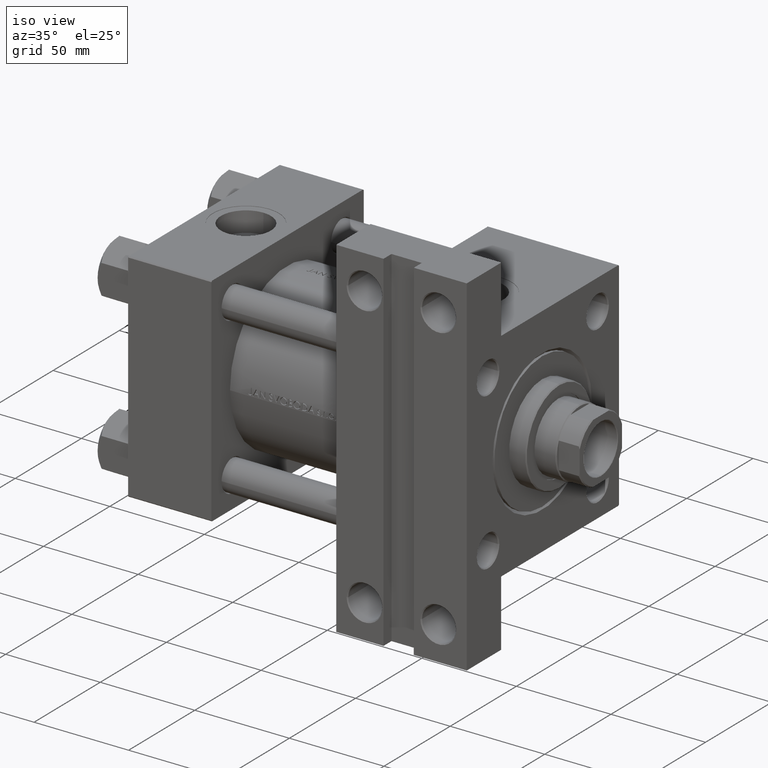
[diagram: clean part render]
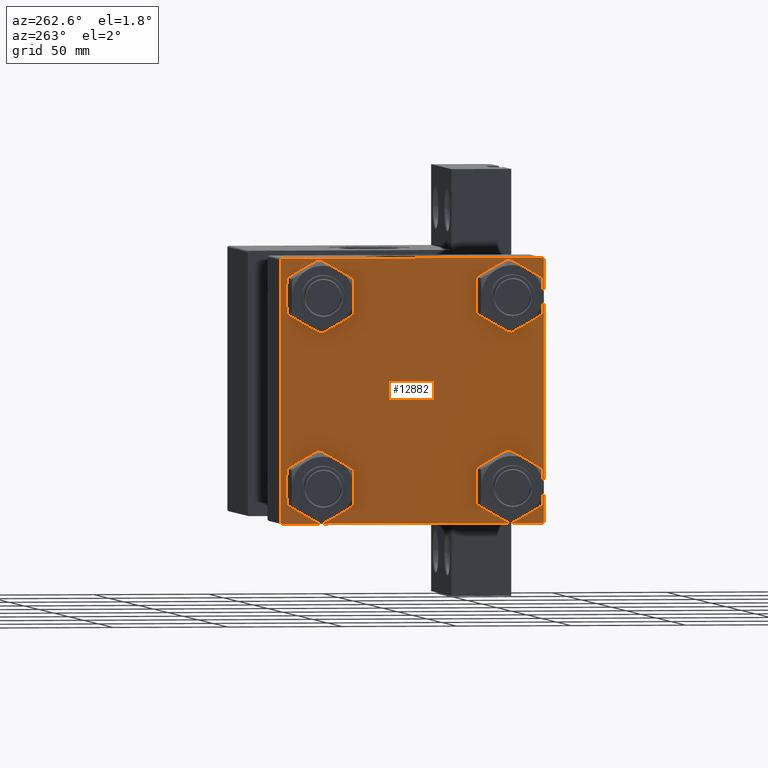
[diagram: tour spotlight — one face highlighted and labeled with its STEP entity id]
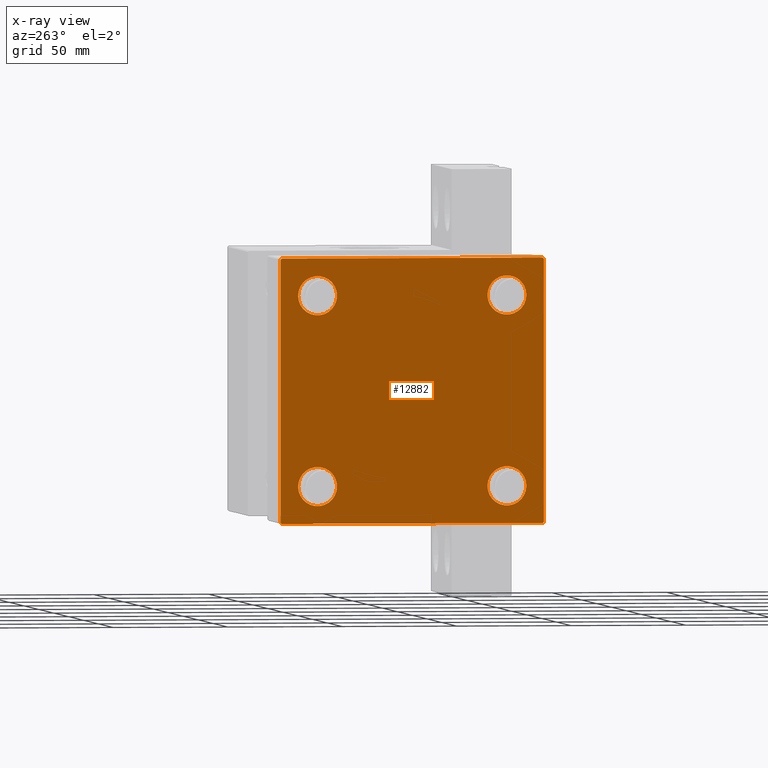
[diagram: x-ray of the same camera — body ghosted, this tour face saturated]
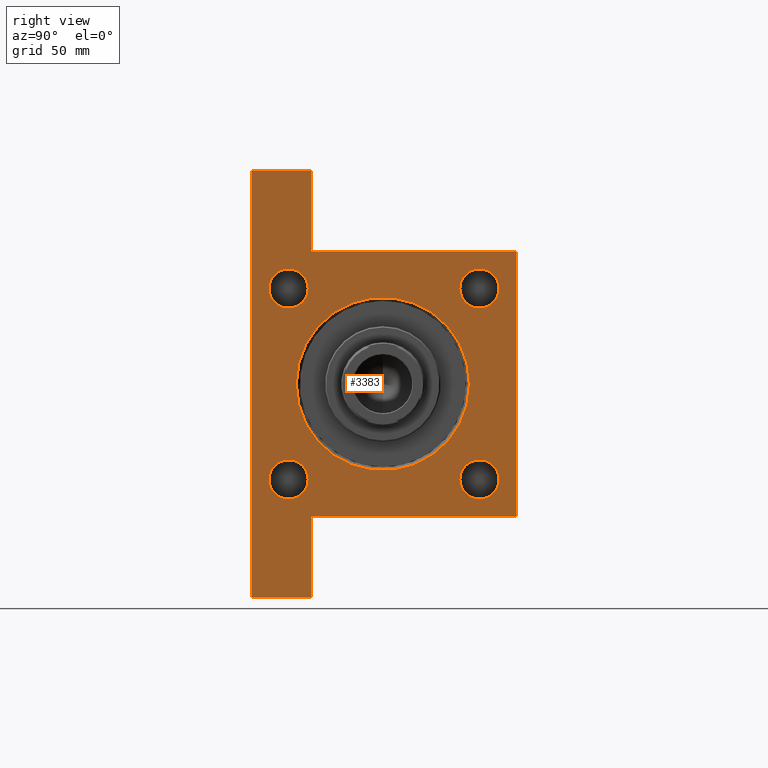
[diagram: tour spotlight — one face highlighted and labeled with its STEP entity id]
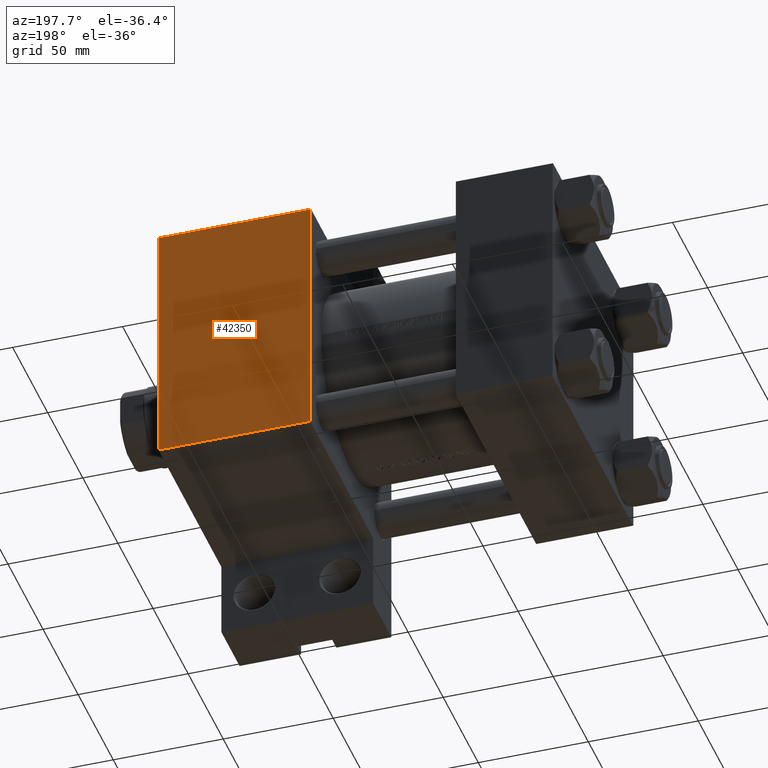
[diagram: tour spotlight — one face highlighted and labeled with its STEP entity id]
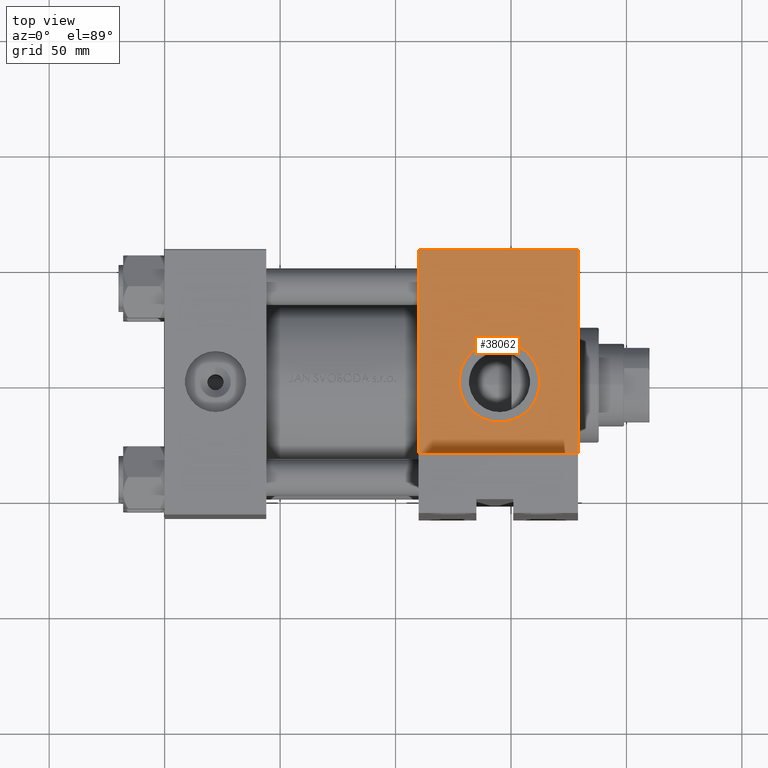
[diagram: tour spotlight — one face highlighted and labeled with its STEP entity id]
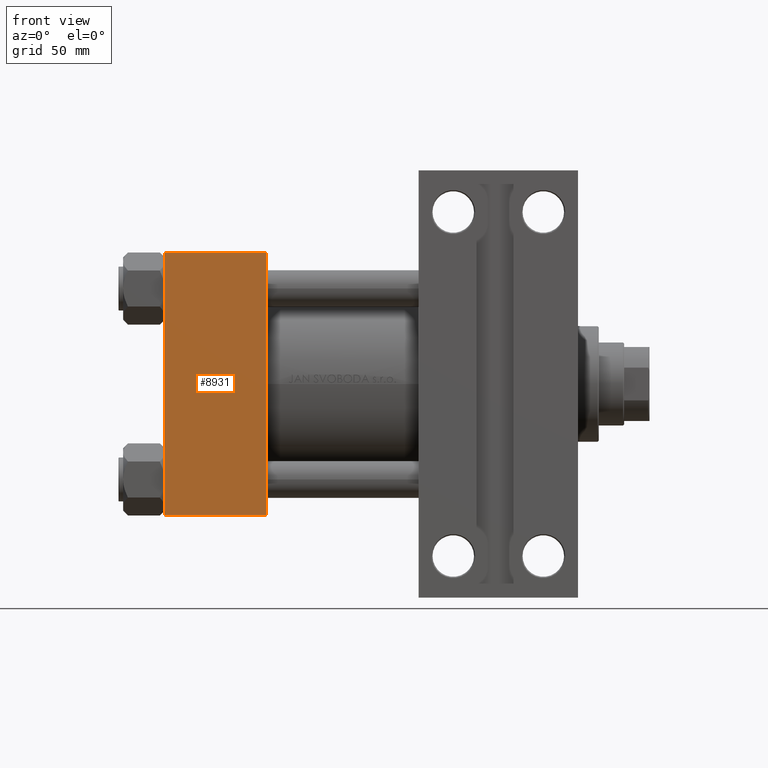
[diagram: tour spotlight — one face highlighted and labeled with its STEP entity id]
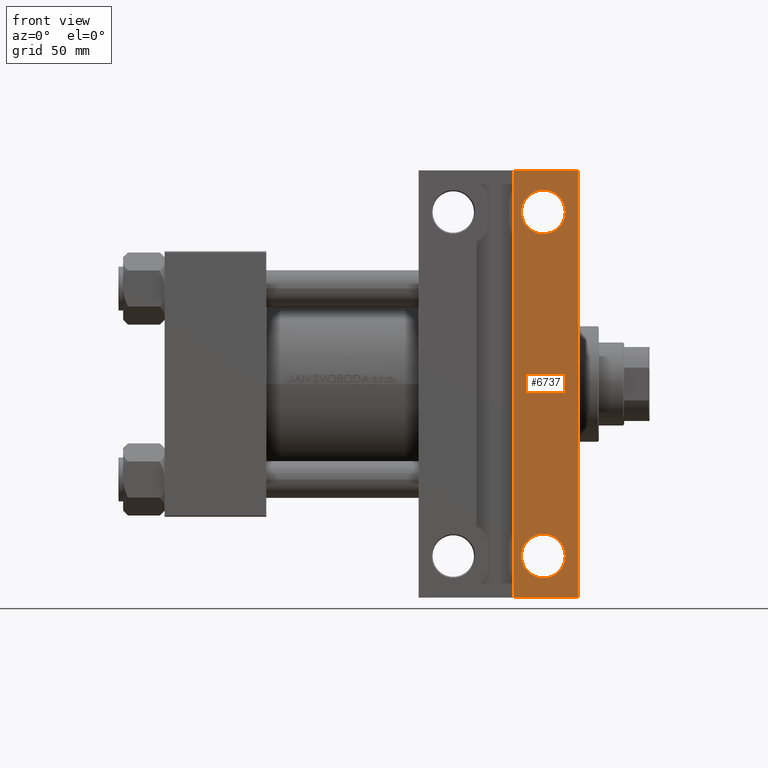
[diagram: tour spotlight — one face highlighted and labeled with its STEP entity id]
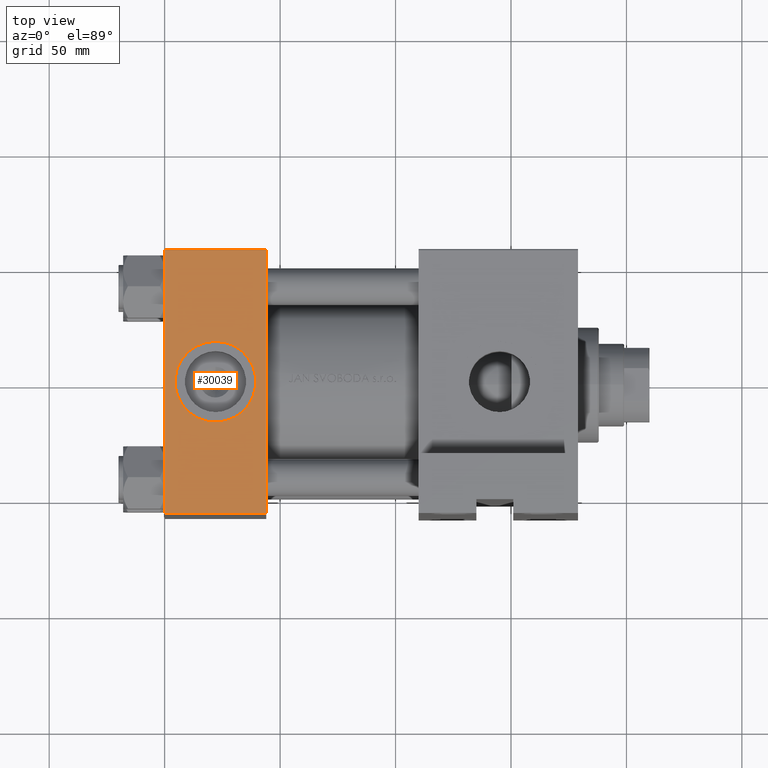
[diagram: tour spotlight — one face highlighted and labeled with its STEP entity id]
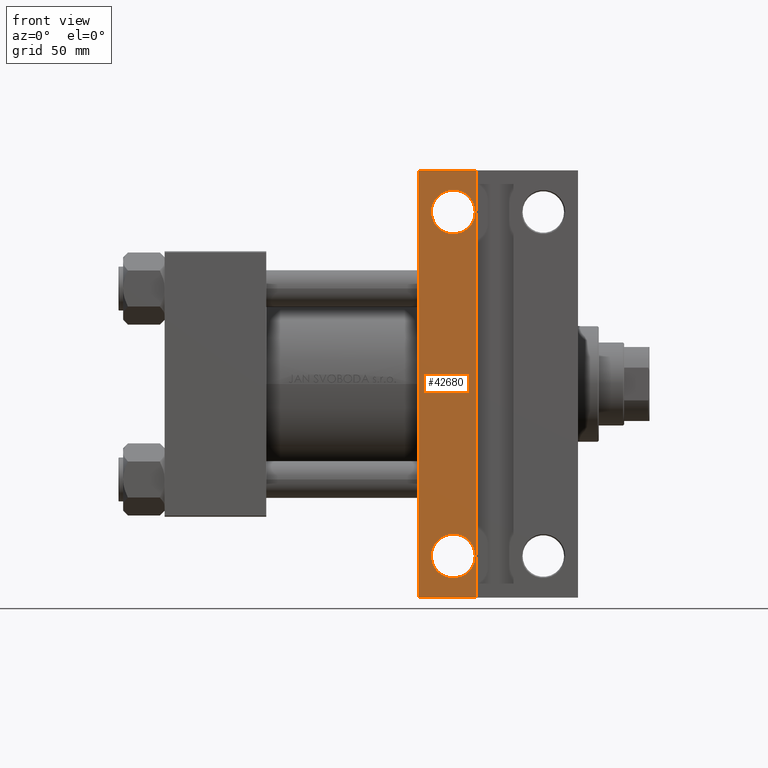
[diagram: tour spotlight — one face highlighted and labeled with its STEP entity id]
A machine part: a face-by-face anatomy tour. The part has 1151 B-rep faces; the first image is the clean iso view, then the 8 largest visible faces are spotlighted one at a time (largest first), each with its STEP entity span.

Face 1 — auxiliary view, entity #12882. An x-ray twin of the same camera follows (body ghosted, this face saturated) — the face is partly hidden behind the body. In plain terms, the highlighted planar face has unit normal (-1, 0, -0).
Definition (entity closure, byte-faithful):
#29 = DIRECTION ( 'NONE',  ( -0.000000000000000000, -0.7071067811865376918, -0.7071067811865573427 ) ) ;
#179 = LINE ( 'NONE', #22540, #7696 ) ;
#505 = DIRECTION ( 'NONE',  ( 0.000000000000000000, 0.000000000000000000, 1.000000000000000000 ) ) ;
#695 = EDGE_CURVE ( 'NONE', #29012, #22927, #42140, .T. ) ;
#711 = ORIENTED_EDGE ( 'NONE', *, *, #29229, .T. ) ;
#904 = FACE_BOUND ( 'NONE', #23667, .T. ) ;
#1090 = CARTESIAN_POINT ( 'NONE',  ( 0.000000000000000000, 41.34999999999999432, 32.85000000000000853 ) ) ;
#1196 = CARTESIAN_POINT ( 'NONE',  ( 0.000000000000000000, -57.00000000000000711, -57.50000000000000711 ) ) ;
#1483 = AXIS2_PLACEMENT_3D ( 'NONE', #33834, #7347, #505 ) ;
#1520 = EDGE_CURVE ( 'NONE', #36647, #13099, #27359, .T. ) ;
#1610 = ORIENTED_EDGE ( 'NONE', *, *, #3996, .T. ) ;
#2169 = CIRCLE ( 'NONE', #11592, 8.499999999999992895 ) ;
#2283 = AXIS2_PLACEMENT_3D ( 'NONE', #38113, #27390, #15746 ) ;
#2630 = AXIS2_PLACEMENT_3D ( 'NONE', #30036, #15696, #11566 ) ;
#2704 = CARTESIAN_POINT ( 'NONE',  ( 0.000000000000000000, -57.50000000000000711, 57.00000000000000711 ) ) ;
#2757 = EDGE_CURVE ( 'NONE', #9072, #33891, #27928, .T. ) ;
#3996 = EDGE_CURVE ( 'NONE', #37522, #20058, #47695, .T. ) ;
#4620 = CARTESIAN_POINT ( 'NONE',  ( 0.000000000000000000, 41.34999999999999432, -32.85000000000000853 ) ) ;
#6272 = DIRECTION ( 'NONE',  ( 0.000000000000000000, 0.000000000000000000, 1.000000000000000000 ) ) ;
#6276 = CARTESIAN_POINT ( 'NONE',  ( 0.000000000000000000, -41.34999999999998721, 41.35000000000000853 ) ) ;
#6684 = VECTOR ( 'NONE', #8875, 1000.000000000000114 ) ;
#7245 = DIRECTION ( 'NONE',  ( 1.000000000000000000, -0.000000000000000000, 0.000000000000000000 ) ) ;
#7347 = DIRECTION ( 'NONE',  ( 1.000000000000000000, -0.000000000000000000, 0.000000000000000000 ) ) ;
#7696 = VECTOR ( 'NONE', #18895, 1000.000000000000000 ) ;
#7769 = VECTOR ( 'NONE', #32452, 1000.000000000000114 ) ;
#7908 = VECTOR ( 'NONE', #36507, 1000.000000000000000 ) ;
#7971 = FACE_BOUND ( 'NONE', #16611, .T. ) ;
#8081 = ORIENTED_EDGE ( 'NONE', *, *, #18179, .F. ) ;
#8875 = DIRECTION ( 'NONE',  ( -0.000000000000000000, 0.7071067811865376918, 0.7071067811865573427 ) ) ;
#9072 = VERTEX_POINT ( 'NONE', #2704 ) ;
#9148 = EDGE_CURVE ( 'NONE', #11414, #11078, #33355, .T. ) ;
#9984 = EDGE_LOOP ( 'NONE', ( #41559, #711 ) ) ;
#10082 = CARTESIAN_POINT ( 'NONE',  ( 0.000000000000000000, -57.25000000000000711, -57.25000000000000711 ) ) ;
#10575 = ORIENTED_EDGE ( 'NONE', *, *, #2757, .F. ) ;
#11078 = VERTEX_POINT ( 'NONE', #29839 ) ;
#11414 = VERTEX_POINT ( 'NONE', #37736 ) ;
#11503 = DIRECTION ( 'NONE',  ( 1.000000000000000000, -0.000000000000000000, 0.000000000000000000 ) ) ;
#11566 = DIRECTION ( 'NONE',  ( 0.000000000000000000, 0.000000000000000000, 1.000000000000000000 ) ) ;
#11592 = AXIS2_PLACEMENT_3D ( 'NONE', #6276, #20853, #35210 ) ;
#12369 = DIRECTION ( 'NONE',  ( 0.000000000000000000, 0.000000000000000000, -1.000000000000000000 ) ) ;
#12588 = PLANE ( 'NONE',  #2283 ) ;
#12596 = VERTEX_POINT ( 'NONE', #1196 ) ;
#12640 = DIRECTION ( 'NONE',  ( 0.000000000000000000, 0.000000000000000000, -1.000000000000000000 ) ) ;
#12882 = ADVANCED_FACE ( 'NONE', ( #41292, #904, #7971, #30578, #33990 ), #12588, .T. ) ;
#13099 = VERTEX_POINT ( 'NONE', #19089 ) ;
#13399 = VERTEX_POINT ( 'NONE', #47325 ) ;
#13967 = VERTEX_POINT ( 'NONE', #22078 ) ;
#14162 = CARTESIAN_POINT ( 'NONE',  ( 0.000000000000000000, 57.25000000000081712, -57.24999999999922551 ) ) ;
#15039 = CARTESIAN_POINT ( 'NONE',  ( 0.000000000000000000, -41.34999999999998721, 49.85000000000000853 ) ) ;
#15580 = ORIENTED_EDGE ( 'NONE', *, *, #37918, .T. ) ;
#15696 = DIRECTION ( 'NONE',  ( 1.000000000000000000, -0.000000000000000000, 0.000000000000000000 ) ) ;
#15746 = DIRECTION ( 'NONE',  ( -0.000000000000000000, 0.000000000000000000, 1.000000000000000000 ) ) ;
#16611 = EDGE_LOOP ( 'NONE', ( #1610, #47545 ) ) ;
#17569 = CARTESIAN_POINT ( 'NONE',  ( 0.000000000000000000, 57.24999999999922551, 57.25000000000081712 ) ) ;
#18060 = AXIS2_PLACEMENT_3D ( 'NONE', #21334, #24981, #6272 ) ;
#18179 = EDGE_CURVE ( 'NONE', #30413, #13399, #44057, .T. ) ;
#18564 = CARTESIAN_POINT ( 'NONE',  ( 0.000000000000000000, 41.34999999999999432, 41.35000000000000142 ) ) ;
#18795 = DIRECTION ( 'NONE',  ( 0.000000000000000000, 0.000000000000000000, 1.000000000000000000 ) ) ;
#18895 = DIRECTION ( 'NONE',  ( 0.000000000000000000, -1.000000000000000000, -1.206764157201257045E-16 ) ) ;
#19089 = CARTESIAN_POINT ( 'NONE',  ( 0.000000000000000000, -41.34999999999998721, 32.85000000000001563 ) ) ;
#19666 = CIRCLE ( 'NONE', #34424, 8.499999999999992895 ) ;
#19975 = VERTEX_POINT ( 'NONE', #43069 ) ;
#20058 = VERTEX_POINT ( 'NONE', #38155 ) ;
#20640 = CARTESIAN_POINT ( 'NONE',  ( 0.000000000000000000, -57.50000000000000711, 57.49999999999999289 ) ) ;
#20711 = CARTESIAN_POINT ( 'NONE',  ( 0.000000000000000000, 57.00000000000000711, 57.50000000000000711 ) ) ;
#20853 = DIRECTION ( 'NONE',  ( 1.000000000000000000, -0.000000000000000000, 0.000000000000000000 ) ) ;
#21002 = CARTESIAN_POINT ( 'NONE',  ( 0.000000000000000000, 57.49999999999999289, 57.50000000000000711 ) ) ;
#21334 = CARTESIAN_POINT ( 'NONE',  ( 0.000000000000000000, -41.34999999999998721, -41.35000000000000853 ) ) ;
#22078 = CARTESIAN_POINT ( 'NONE',  ( 0.000000000000000000, 57.49999999999999289, 57.00000000000003553 ) ) ;
#22540 = CARTESIAN_POINT ( 'NONE',  ( 0.000000000000000000, 57.49999999999999289, -57.49999999999999289 ) ) ;
#22927 = VERTEX_POINT ( 'NONE', #33579 ) ;
#23021 = ORIENTED_EDGE ( 'NONE', *, *, #695, .T. ) ;
#23667 = EDGE_LOOP ( 'NONE', ( #23021, #32796 ) ) ;
#24981 = DIRECTION ( 'NONE',  ( 1.000000000000000000, -0.000000000000000000, 0.000000000000000000 ) ) ;
#25062 = EDGE_CURVE ( 'NONE', #9072, #13399, #31007, .T. ) ;
#25337 = LINE ( 'NONE', #17569, #34676 ) ;
#26511 = EDGE_CURVE ( 'NONE', #30413, #13967, #25337, .T. ) ;
#26939 = CARTESIAN_POINT ( 'NONE',  ( 0.000000000000000000, 57.49999999999999289, 57.50000000000000711 ) ) ;
#27359 = CIRCLE ( 'NONE', #30507, 8.499999999999992895 ) ;
#27390 = DIRECTION ( 'NONE',  ( -1.000000000000000000, 0.000000000000000000, -0.000000000000000000 ) ) ;
#27437 = ORIENTED_EDGE ( 'NONE', *, *, #25062, .T. ) ;
#27815 = DIRECTION ( 'NONE',  ( 1.000000000000000000, -0.000000000000000000, 0.000000000000000000 ) ) ;
#27928 = LINE ( 'NONE', #20640, #34430 ) ;
#28890 = CARTESIAN_POINT ( 'NONE',  ( 0.000000000000000000, 41.34999999999999432, -41.35000000000000142 ) ) ;
#29012 = VERTEX_POINT ( 'NONE', #33927 ) ;
#29126 = ORIENTED_EDGE ( 'NONE', *, *, #1520, .T. ) ;
#29229 = EDGE_CURVE ( 'NONE', #37796, #19975, #32433, .T. ) ;
#29839 = CARTESIAN_POINT ( 'NONE',  ( 0.000000000000000000, 57.00000000000002132, -57.49999999999999289 ) ) ;
#30036 = CARTESIAN_POINT ( 'NONE',  ( 0.000000000000000000, 41.34999999999999432, -41.35000000000000142 ) ) ;
#30413 = VERTEX_POINT ( 'NONE', #20711 ) ;
#30507 = AXIS2_PLACEMENT_3D ( 'NONE', #40561, #7245, #36902 ) ;
#30578 = FACE_BOUND ( 'NONE', #9984, .T. ) ;
#31007 = LINE ( 'NONE', #31252, #6684 ) ;
#31252 = CARTESIAN_POINT ( 'NONE',  ( -0.000000000000000000, -57.25000000000081712, 57.24999999999922551 ) ) ;
#31256 = EDGE_CURVE ( 'NONE', #22927, #29012, #36425, .T. ) ;
#31688 = ORIENTED_EDGE ( 'NONE', *, *, #35754, .T. ) ;
#32433 = CIRCLE ( 'NONE', #38632, 8.499999999999992895 ) ;
#32452 = DIRECTION ( 'NONE',  ( 0.000000000000000000, -0.7071067811865474617, 0.7071067811865474617 ) ) ;
#32795 = EDGE_CURVE ( 'NONE', #13099, #36647, #2169, .T. ) ;
#32796 = ORIENTED_EDGE ( 'NONE', *, *, #31256, .T. ) ;
#32957 = ORIENTED_EDGE ( 'NONE', *, *, #32795, .T. ) ;
#33355 = LINE ( 'NONE', #14162, #38493 ) ;
#33579 = CARTESIAN_POINT ( 'NONE',  ( 0.000000000000000000, -41.34999999999998721, -49.85000000000000853 ) ) ;
#33834 = CARTESIAN_POINT ( 'NONE',  ( 0.000000000000000000, -41.34999999999998721, -41.35000000000000853 ) ) ;
#33891 = VERTEX_POINT ( 'NONE', #42953 ) ;
#33927 = CARTESIAN_POINT ( 'NONE',  ( 0.000000000000000000, -41.34999999999998721, -32.85000000000001563 ) ) ;
#33990 = FACE_OUTER_BOUND ( 'NONE', #38801, .T. ) ;
#34424 = AXIS2_PLACEMENT_3D ( 'NONE', #46329, #27815, #42671 ) ;
#34430 = VECTOR ( 'NONE', #12640, 1000.000000000000000 ) ;
#34676 = VECTOR ( 'NONE', #47987, 1000.000000000000114 ) ;
#35210 = DIRECTION ( 'NONE',  ( 0.000000000000000000, 0.000000000000000000, 1.000000000000000000 ) ) ;
#35391 = ORIENTED_EDGE ( 'NONE', *, *, #9148, .T. ) ;
#35754 = EDGE_CURVE ( 'NONE', #11078, #12596, #179, .T. ) ;
#35766 = EDGE_CURVE ( 'NONE', #20058, #37522, #44998, .T. ) ;
#36425 = CIRCLE ( 'NONE', #1483, 8.499999999999992895 ) ;
#36435 = DIRECTION ( 'NONE',  ( 0.000000000000000000, 0.000000000000000000, 1.000000000000000000 ) ) ;
#36507 = DIRECTION ( 'NONE',  ( 0.000000000000000000, -1.000000000000000000, -1.206764157201257045E-16 ) ) ;
#36588 = ORIENTED_EDGE ( 'NONE', *, *, #39378, .T. ) ;
#36647 = VERTEX_POINT ( 'NONE', #15039 ) ;
#36902 = DIRECTION ( 'NONE',  ( 0.000000000000000000, 0.000000000000000000, 1.000000000000000000 ) ) ;
#37522 = VERTEX_POINT ( 'NONE', #4620 ) ;
#37736 = CARTESIAN_POINT ( 'NONE',  ( 0.000000000000000000, 57.49999999999999289, -57.00000000000000711 ) ) ;
#37796 = VERTEX_POINT ( 'NONE', #1090 ) ;
#37918 = EDGE_CURVE ( 'NONE', #12596, #33891, #39028, .T. ) ;
#38113 = CARTESIAN_POINT ( 'NONE',  ( 0.000000000000000000, 0.000000000000000000, 0.000000000000000000 ) ) ;
#38155 = CARTESIAN_POINT ( 'NONE',  ( 0.000000000000000000, 41.34999999999999432, -49.85000000000000142 ) ) ;
#38493 = VECTOR ( 'NONE', #29, 1000.000000000000114 ) ;
#38632 = AXIS2_PLACEMENT_3D ( 'NONE', #18564, #11503, #18795 ) ;
#38801 = EDGE_LOOP ( 'NONE', ( #36588, #35391, #31688, #15580, #10575, #27437, #8081, #43176 ) ) ;
#39028 = LINE ( 'NONE', #10082, #7769 ) ;
#39378 = EDGE_CURVE ( 'NONE', #13967, #11414, #44746, .T. ) ;
#40096 = DIRECTION ( 'NONE',  ( 1.000000000000000000, -0.000000000000000000, 0.000000000000000000 ) ) ;
#40359 = AXIS2_PLACEMENT_3D ( 'NONE', #28890, #40096, #36435 ) ;
#40561 = CARTESIAN_POINT ( 'NONE',  ( 0.000000000000000000, -41.34999999999998721, 41.35000000000000853 ) ) ;
#41292 = FACE_BOUND ( 'NONE', #45463, .T. ) ;
#41559 = ORIENTED_EDGE ( 'NONE', *, *, #46225, .T. ) ;
#42140 = CIRCLE ( 'NONE', #18060, 8.499999999999992895 ) ;
#42671 = DIRECTION ( 'NONE',  ( 0.000000000000000000, 0.000000000000000000, 1.000000000000000000 ) ) ;
#42770 = VECTOR ( 'NONE', #12369, 1000.000000000000000 ) ;
#42953 = CARTESIAN_POINT ( 'NONE',  ( 0.000000000000000000, -57.50000000000000711, -57.00000000000000711 ) ) ;
#43069 = CARTESIAN_POINT ( 'NONE',  ( 0.000000000000000000, 41.34999999999999432, 49.85000000000000142 ) ) ;
#43176 = ORIENTED_EDGE ( 'NONE', *, *, #26511, .T. ) ;
#44057 = LINE ( 'NONE', #21002, #7908 ) ;
#44746 = LINE ( 'NONE', #26939, #42770 ) ;
#44998 = CIRCLE ( 'NONE', #40359, 8.499999999999992895 ) ;
#45463 = EDGE_LOOP ( 'NONE', ( #29126, #32957 ) ) ;
#46225 = EDGE_CURVE ( 'NONE', #19975, #37796, #19666, .T. ) ;
#46329 = CARTESIAN_POINT ( 'NONE',  ( 0.000000000000000000, 41.34999999999999432, 41.35000000000000142 ) ) ;
#47325 = CARTESIAN_POINT ( 'NONE',  ( 0.000000000000000000, -57.00000000000003553, 57.49999999999999289 ) ) ;
#47545 = ORIENTED_EDGE ( 'NONE', *, *, #35766, .T. ) ;
#47695 = CIRCLE ( 'NONE', #2630, 8.499999999999992895 ) ;
#47987 = DIRECTION ( 'NONE',  ( 0.000000000000000000, 0.7071067811865573427, -0.7071067811865376918 ) ) ;

Face 2 — right view, entity #3383. In plain terms, the highlighted planar face has unit normal (-1, 0, -0).
Definition (entity closure, byte-faithful):
#60 = CARTESIAN_POINT ( 'NONE',  ( 179.0000000000000000, 41.34999999999999432, 32.84999999999994458 ) ) ;
#102 = CARTESIAN_POINT ( 'NONE',  ( 179.0000000000000000, 41.34999999999999432, -32.84999999999994458 ) ) ;
#301 = DIRECTION ( 'NONE',  ( 0.000000000000000000, 0.000000000000000000, 1.000000000000000000 ) ) ;
#892 = LINE ( 'NONE', #15736, #28988 ) ;
#1118 = LINE ( 'NONE', #4299, #1759 ) ;
#1381 = CIRCLE ( 'NONE', #28560, 8.500000000000063949 ) ;
#1759 = VECTOR ( 'NONE', #7948, 1000.000000000000000 ) ;
#2134 = LINE ( 'NONE', #2622, #46529 ) ;
#2154 = ORIENTED_EDGE ( 'NONE', *, *, #42298, .T. ) ;
#2362 = VERTEX_POINT ( 'NONE', #12989 ) ;
#2622 = CARTESIAN_POINT ( 'NONE',  ( 179.0000000000000000, -57.49999999999999289, 56.99999999999996447 ) ) ;
#2833 = VERTEX_POINT ( 'NONE', #21367 ) ;
#3004 = FACE_BOUND ( 'NONE', #41665, .T. ) ;
#3240 = LINE ( 'NONE', #28528, #4682 ) ;
#3383 = ADVANCED_FACE ( 'NONE', ( #46563, #13247, #29031, #3004, #18093, #13723 ), #17603, .F. ) ;
#3420 = CARTESIAN_POINT ( 'NONE',  ( 179.0000000000000000, 0.000000000000000000, -0.4999999999999657496 ) ) ;
#3446 = VERTEX_POINT ( 'NONE', #41409 ) ;
#3448 = ORIENTED_EDGE ( 'NONE', *, *, #14490, .F. ) ;
#3570 = AXIS2_PLACEMENT_3D ( 'NONE', #42992, #16478, #31316 ) ;
#3794 = EDGE_CURVE ( 'NONE', #27403, #33658, #35419, .T. ) ;
#4096 = CARTESIAN_POINT ( 'NONE',  ( 179.0000000000000000, 4.592425496802575156E-15, 37.00000000000004263 ) ) ;
#4124 = AXIS2_PLACEMENT_3D ( 'NONE', #40466, #36089, #6427 ) ;
#4248 = DIRECTION ( 'NONE',  ( -1.000000000000000000, 0.000000000000000000, -0.000000000000000000 ) ) ;
#4299 = CARTESIAN_POINT ( 'NONE',  ( 179.0000000000000284, 92.49999999999997158, -31.49999999999997158 ) ) ;
#4682 = VECTOR ( 'NONE', #47042, 1000.000000000000000 ) ;
#5104 = CIRCLE ( 'NONE', #47063, 8.500000000000063949 ) ;
#5567 = LINE ( 'NONE', #42300, #38944 ) ;
#5569 = CARTESIAN_POINT ( 'NONE',  ( 179.0000000000000000, -57.49999999999999289, 57.49999999999999289 ) ) ;
#5698 = DIRECTION ( 'NONE',  ( 0.000000000000000000, 0.000000000000000000, 1.000000000000000000 ) ) ;
#5734 = CARTESIAN_POINT ( 'NONE',  ( 179.0000000000000000, 41.34999999999999432, 49.85000000000006537 ) ) ;
#6263 = EDGE_CURVE ( 'NONE', #16394, #46175, #44660, .T. ) ;
#6349 = DIRECTION ( 'NONE',  ( -1.000000000000000000, 0.000000000000000000, -0.000000000000000000 ) ) ;
#6427 = DIRECTION ( 'NONE',  ( -0.000000000000000000, 0.000000000000000000, 1.000000000000000000 ) ) ;
#6869 = VERTEX_POINT ( 'NONE', #31322 ) ;
#6991 = CIRCLE ( 'NONE', #34904, 37.50000000000000711 ) ;
#7868 = CIRCLE ( 'NONE', #26491, 8.500000000000063949 ) ;
#7948 = DIRECTION ( 'NONE',  ( 0.000000000000000000, -1.000000000000000000, 0.000000000000000000 ) ) ;
#8547 = ORIENTED_EDGE ( 'NONE', *, *, #41626, .F. ) ;
#8836 = ORIENTED_EDGE ( 'NONE', *, *, #45026, .T. ) ;
#9292 = DIRECTION ( 'NONE',  ( -1.000000000000000000, 0.000000000000000000, -0.000000000000000000 ) ) ;
#9350 = LINE ( 'NONE', #39027, #13470 ) ;
#9507 = VERTEX_POINT ( 'NONE', #31843 ) ;
#9540 = CARTESIAN_POINT ( 'NONE',  ( 179.0000000000000000, 41.34999999999999432, 41.35000000000000142 ) ) ;
#9645 = ORIENTED_EDGE ( 'NONE', *, *, #18255, .T. ) ;
#9671 = VERTEX_POINT ( 'NONE', #37164 ) ;
#10109 = EDGE_CURVE ( 'NONE', #13312, #11343, #38694, .T. ) ;
#10255 = ORIENTED_EDGE ( 'NONE', *, *, #6263, .T. ) ;
#10323 = DIRECTION ( 'NONE',  ( -1.000000000000000000, 0.000000000000000000, -0.000000000000000000 ) ) ;
#10453 = ORIENTED_EDGE ( 'NONE', *, *, #46238, .F. ) ;
#10538 = CIRCLE ( 'NONE', #26815, 8.500000000000063949 ) ;
#10858 = EDGE_CURVE ( 'NONE', #3446, #45104, #2134, .T. ) ;
#11257 = CARTESIAN_POINT ( 'NONE',  ( 179.0000000000000000, -41.34999999999999432, 41.35000000000000142 ) ) ;
#11300 = CARTESIAN_POINT ( 'NONE',  ( 179.0000000000000000, -57.49999999999999289, -31.49999999999997158 ) ) ;
#11343 = VERTEX_POINT ( 'NONE', #60 ) ;
#11550 = CARTESIAN_POINT ( 'NONE',  ( 179.0000000000000000, 0.000000000000000000, -0.4999999999999657496 ) ) ;
#12001 = ORIENTED_EDGE ( 'NONE', *, *, #24025, .T. ) ;
#12283 = VERTEX_POINT ( 'NONE', #33688 ) ;
#12716 = VECTOR ( 'NONE', #28125, 1000.000000000000000 ) ;
#12989 = CARTESIAN_POINT ( 'NONE',  ( 179.0000000000000284, 92.49999999999997158, -31.49999999999997158 ) ) ;
#13199 = CARTESIAN_POINT ( 'NONE',  ( 179.0000000000000000, 41.34999999999999432, -41.35000000000000142 ) ) ;
#13247 = FACE_BOUND ( 'NONE', #38810, .T. ) ;
#13312 = VERTEX_POINT ( 'NONE', #5734 ) ;
#13396 = VECTOR ( 'NONE', #26984, 1000.000000000000000 ) ;
#13470 = VECTOR ( 'NONE', #31715, 1000.000000000000000 ) ;
#13723 = FACE_OUTER_BOUND ( 'NONE', #20961, .T. ) ;
#14490 = EDGE_CURVE ( 'NONE', #2362, #40788, #3240, .T. ) ;
#15135 = ORIENTED_EDGE ( 'NONE', *, *, #10109, .T. ) ;
#15736 = CARTESIAN_POINT ( 'NONE',  ( 179.0000000000000000, -92.50000000000000000, -31.49999999999997158 ) ) ;
#16301 = LINE ( 'NONE', #34304, #13396 ) ;
#16339 = DIRECTION ( 'NONE',  ( 0.000000000000000000, 0.000000000000000000, 1.000000000000000000 ) ) ;
#16394 = VERTEX_POINT ( 'NONE', #47460 ) ;
#16478 = DIRECTION ( 'NONE',  ( -1.000000000000000000, 0.000000000000000000, -0.000000000000000000 ) ) ;
#17103 = EDGE_LOOP ( 'NONE', ( #21674, #10255 ) ) ;
#17480 = CARTESIAN_POINT ( 'NONE',  ( 179.0000000000000000, -41.34999999999999432, 32.84999999999994458 ) ) ;
#17603 = PLANE ( 'NONE',  #4124 ) ;
#17747 = AXIS2_PLACEMENT_3D ( 'NONE', #9540, #46518, #32159 ) ;
#17773 = AXIS2_PLACEMENT_3D ( 'NONE', #3420, #6349, #21415 ) ;
#17835 = DIRECTION ( 'NONE',  ( -1.000000000000000000, 0.000000000000000000, -0.000000000000000000 ) ) ;
#18093 = FACE_BOUND ( 'NONE', #45800, .T. ) ;
#18255 = EDGE_CURVE ( 'NONE', #45104, #27403, #24054, .T. ) ;
#18868 = DIRECTION ( 'NONE',  ( 0.000000000000000000, 0.000000000000000000, 1.000000000000000000 ) ) ;
#19712 = ORIENTED_EDGE ( 'NONE', *, *, #10858, .T. ) ;
#20961 = EDGE_LOOP ( 'NONE', ( #10453, #22275, #31061, #19712, #9645, #37949, #8836, #8547, #3448, #22543 ) ) ;
#21367 = CARTESIAN_POINT ( 'NONE',  ( 179.0000000000000000, -41.34999999999999432, 49.85000000000006537 ) ) ;
#21415 = DIRECTION ( 'NONE',  ( 0.000000000000000000, 0.000000000000000000, 1.000000000000000000 ) ) ;
#21674 = ORIENTED_EDGE ( 'NONE', *, *, #41903, .T. ) ;
#22275 = ORIENTED_EDGE ( 'NONE', *, *, #47630, .T. ) ;
#22543 = ORIENTED_EDGE ( 'NONE', *, *, #44316, .T. ) ;
#23350 = EDGE_CURVE ( 'NONE', #9507, #39070, #10538, .T. ) ;
#23831 = VERTEX_POINT ( 'NONE', #4096 ) ;
#24025 = EDGE_CURVE ( 'NONE', #11343, #13312, #5104, .T. ) ;
#24054 = LINE ( 'NONE', #5569, #41308 ) ;
#25774 = AXIS2_PLACEMENT_3D ( 'NONE', #35116, #10323, #5698 ) ;
#26364 = DIRECTION ( 'NONE',  ( 0.000000000000000000, 0.000000000000000000, 1.000000000000000000 ) ) ;
#26491 = AXIS2_PLACEMENT_3D ( 'NONE', #46384, #38355, #30576 ) ;
#26815 = AXIS2_PLACEMENT_3D ( 'NONE', #13199, #9292, #39215 ) ;
#26984 = DIRECTION ( 'NONE',  ( 0.000000000000000000, -0.7071067811865672237, 0.7071067811865279218 ) ) ;
#27403 = VERTEX_POINT ( 'NONE', #11300 ) ;
#27888 = EDGE_CURVE ( 'NONE', #42338, #3446, #32312, .T. ) ;
#28125 = DIRECTION ( 'NONE',  ( -0.000000000000000000, -1.000000000000000000, -0.000000000000000000 ) ) ;
#28424 = EDGE_CURVE ( 'NONE', #2833, #40951, #1381, .T. ) ;
#28528 = CARTESIAN_POINT ( 'NONE',  ( 179.0000000000000284, 92.49999999999997158, -31.49999999999997158 ) ) ;
#28560 = AXIS2_PLACEMENT_3D ( 'NONE', #11257, #17835, #301 ) ;
#28988 = VECTOR ( 'NONE', #33515, 1000.000000000000000 ) ;
#29031 = FACE_BOUND ( 'NONE', #17103, .T. ) ;
#29038 = CARTESIAN_POINT ( 'NONE',  ( 179.0000000000000000, 57.50000000000000000, 57.00000000000009237 ) ) ;
#30576 = DIRECTION ( 'NONE',  ( 0.000000000000000000, 0.000000000000000000, 1.000000000000000000 ) ) ;
#30870 = DIRECTION ( 'NONE',  ( 0.000000000000000000, -1.000000000000000000, -1.206764157201257291E-16 ) ) ;
#31061 = ORIENTED_EDGE ( 'NONE', *, *, #27888, .T. ) ;
#31316 = DIRECTION ( 'NONE',  ( 0.000000000000000000, 0.000000000000000000, 1.000000000000000000 ) ) ;
#31322 = CARTESIAN_POINT ( 'NONE',  ( 179.0000000000000000, -92.50000000000000000, -57.49999999999997158 ) ) ;
#31715 = DIRECTION ( 'NONE',  ( 0.000000000000000000, 0.000000000000000000, -1.000000000000000000 ) ) ;
#31843 = CARTESIAN_POINT ( 'NONE',  ( 179.0000000000000000, 41.34999999999999432, -49.85000000000006537 ) ) ;
#32159 = DIRECTION ( 'NONE',  ( 0.000000000000000000, 0.000000000000000000, 1.000000000000000000 ) ) ;
#32312 = LINE ( 'NONE', #46918, #32401 ) ;
#32401 = VECTOR ( 'NONE', #36440, 1000.000000000000000 ) ;
#33515 = DIRECTION ( 'NONE',  ( 0.000000000000000000, 0.000000000000000000, -1.000000000000000000 ) ) ;
#33658 = VERTEX_POINT ( 'NONE', #37967 ) ;
#33688 = CARTESIAN_POINT ( 'NONE',  ( 179.0000000000000284, 57.49999999999998579, -31.49999999999997158 ) ) ;
#33946 = ORIENTED_EDGE ( 'NONE', *, *, #34491, .T. ) ;
#34149 = CIRCLE ( 'NONE', #41924, 8.500000000000063949 ) ;
#34216 = CARTESIAN_POINT ( 'NONE',  ( 179.0000000000000000, -57.49999999999999289, 56.99999999999996447 ) ) ;
#34304 = CARTESIAN_POINT ( 'NONE',  ( 179.0000000000000000, 57.00000000000005684, 57.50000000000000711 ) ) ;
#34491 = EDGE_CURVE ( 'NONE', #23831, #9671, #44215, .T. ) ;
#34904 = AXIS2_PLACEMENT_3D ( 'NONE', #11550, #4248, #26364 ) ;
#35116 = CARTESIAN_POINT ( 'NONE',  ( 179.0000000000000000, 41.34999999999999432, -41.35000000000000142 ) ) ;
#35291 = CARTESIAN_POINT ( 'NONE',  ( 179.0000000000000000, -41.34999999999999432, 41.35000000000000142 ) ) ;
#35419 = LINE ( 'NONE', #46628, #12716 ) ;
#35478 = DIRECTION ( 'NONE',  ( 0.000000000000000000, 0.000000000000000000, -1.000000000000000000 ) ) ;
#35565 = ORIENTED_EDGE ( 'NONE', *, *, #37191, .T. ) ;
#35879 = CARTESIAN_POINT ( 'NONE',  ( 179.0000000000000284, 92.49999999999997158, -57.49999999999997158 ) ) ;
#36089 = DIRECTION ( 'NONE',  ( -1.000000000000000000, 0.000000000000000000, -0.000000000000000000 ) ) ;
#36440 = DIRECTION ( 'NONE',  ( 0.000000000000000000, -1.000000000000000000, -1.206764157201257291E-16 ) ) ;
#36854 = EDGE_CURVE ( 'NONE', #9671, #23831, #6991, .T. ) ;
#37164 = CARTESIAN_POINT ( 'NONE',  ( 179.0000000000000000, 0.000000000000000000, -37.99999999999997158 ) ) ;
#37191 = EDGE_CURVE ( 'NONE', #40951, #2833, #34149, .T. ) ;
#37815 = CARTESIAN_POINT ( 'NONE',  ( 179.0000000000000000, -41.34999999999999432, -49.85000000000006537 ) ) ;
#37826 = DIRECTION ( 'NONE',  ( -1.000000000000000000, 0.000000000000000000, -0.000000000000000000 ) ) ;
#37949 = ORIENTED_EDGE ( 'NONE', *, *, #3794, .T. ) ;
#37967 = CARTESIAN_POINT ( 'NONE',  ( 179.0000000000000000, -92.50000000000000000, -31.49999999999997158 ) ) ;
#38355 = DIRECTION ( 'NONE',  ( -1.000000000000000000, 0.000000000000000000, -0.000000000000000000 ) ) ;
#38694 = CIRCLE ( 'NONE', #17747, 8.500000000000063949 ) ;
#38810 = EDGE_LOOP ( 'NONE', ( #35565, #41691 ) ) ;
#38944 = VECTOR ( 'NONE', #30870, 1000.000000000000000 ) ;
#39027 = CARTESIAN_POINT ( 'NONE',  ( 179.0000000000000000, 57.50000000000000000, 57.50000000000000711 ) ) ;
#39070 = VERTEX_POINT ( 'NONE', #102 ) ;
#39124 = DIRECTION ( 'NONE',  ( -0.000000000000000000, -0.7071067811865524577, -0.7071067811865426878 ) ) ;
#39215 = DIRECTION ( 'NONE',  ( 0.000000000000000000, 0.000000000000000000, 1.000000000000000000 ) ) ;
#39436 = DIRECTION ( 'NONE',  ( -1.000000000000000000, 0.000000000000000000, -0.000000000000000000 ) ) ;
#40466 = CARTESIAN_POINT ( 'NONE',  ( 179.0000000000000000, 0.000000000000000000, 0.000000000000000000 ) ) ;
#40788 = VERTEX_POINT ( 'NONE', #35879 ) ;
#40951 = VERTEX_POINT ( 'NONE', #17480 ) ;
#41138 = ORIENTED_EDGE ( 'NONE', *, *, #23350, .T. ) ;
#41308 = VECTOR ( 'NONE', #35478, 1000.000000000000000 ) ;
#41409 = CARTESIAN_POINT ( 'NONE',  ( 179.0000000000000000, -56.99999999999995737, 57.49999999999999289 ) ) ;
#41626 = EDGE_CURVE ( 'NONE', #40788, #6869, #5567, .T. ) ;
#41665 = EDGE_LOOP ( 'NONE', ( #41138, #2154 ) ) ;
#41691 = ORIENTED_EDGE ( 'NONE', *, *, #28424, .T. ) ;
#41903 = EDGE_CURVE ( 'NONE', #46175, #16394, #7868, .T. ) ;
#41924 = AXIS2_PLACEMENT_3D ( 'NONE', #35291, #39436, #16339 ) ;
#42298 = EDGE_CURVE ( 'NONE', #39070, #9507, #43675, .T. ) ;
#42300 = CARTESIAN_POINT ( 'NONE',  ( 179.0000000000000000, 57.50000000000000000, -57.49999999999996447 ) ) ;
#42338 = VERTEX_POINT ( 'NONE', #46326 ) ;
#42992 = CARTESIAN_POINT ( 'NONE',  ( 179.0000000000000000, -41.34999999999999432, -41.35000000000000142 ) ) ;
#43671 = ORIENTED_EDGE ( 'NONE', *, *, #36854, .T. ) ;
#43675 = CIRCLE ( 'NONE', #25774, 8.500000000000063949 ) ;
#44215 = CIRCLE ( 'NONE', #17773, 37.50000000000000711 ) ;
#44316 = EDGE_CURVE ( 'NONE', #2362, #12283, #1118, .T. ) ;
#44660 = CIRCLE ( 'NONE', #3570, 8.500000000000063949 ) ;
#44904 = CARTESIAN_POINT ( 'NONE',  ( 179.0000000000000000, 41.34999999999999432, 41.35000000000000142 ) ) ;
#45026 = EDGE_CURVE ( 'NONE', #33658, #6869, #892, .T. ) ;
#45104 = VERTEX_POINT ( 'NONE', #34216 ) ;
#45298 = EDGE_LOOP ( 'NONE', ( #12001, #15135 ) ) ;
#45800 = EDGE_LOOP ( 'NONE', ( #43671, #33946 ) ) ;
#46175 = VERTEX_POINT ( 'NONE', #37815 ) ;
#46238 = EDGE_CURVE ( 'NONE', #46313, #12283, #9350, .T. ) ;
#46313 = VERTEX_POINT ( 'NONE', #29038 ) ;
#46326 = CARTESIAN_POINT ( 'NONE',  ( 179.0000000000000000, 57.00000000000005684, 57.50000000000000711 ) ) ;
#46384 = CARTESIAN_POINT ( 'NONE',  ( 179.0000000000000000, -41.34999999999999432, -41.35000000000000142 ) ) ;
#46518 = DIRECTION ( 'NONE',  ( -1.000000000000000000, 0.000000000000000000, -0.000000000000000000 ) ) ;
#46529 = VECTOR ( 'NONE', #39124, 1000.000000000000000 ) ;
#46563 = FACE_BOUND ( 'NONE', #45298, .T. ) ;
#46628 = CARTESIAN_POINT ( 'NONE',  ( 179.0000000000000000, -92.50000000000000000, -31.49999999999997158 ) ) ;
#46918 = CARTESIAN_POINT ( 'NONE',  ( 179.0000000000000000, 57.50000000000000000, 57.50000000000000711 ) ) ;
#47042 = DIRECTION ( 'NONE',  ( 0.000000000000000000, 0.000000000000000000, -1.000000000000000000 ) ) ;
#47063 = AXIS2_PLACEMENT_3D ( 'NONE', #44904, #37826, #18868 ) ;
#47460 = CARTESIAN_POINT ( 'NONE',  ( 179.0000000000000000, -41.34999999999999432, -32.84999999999994458 ) ) ;
#47630 = EDGE_CURVE ( 'NONE', #46313, #42338, #16301, .T. ) ;

Face 3 — auxiliary view, entity #42350. In plain terms, the highlighted planar face has unit normal (0, -1, -0).
Definition (entity closure, byte-faithful):
#3150 = EDGE_CURVE ( 'NONE', #13978, #10663, #6724, .T. ) ;
#3446 = VERTEX_POINT ( 'NONE', #41409 ) ;
#3604 = DIRECTION ( 'NONE',  ( 1.000000000000000000, 0.000000000000000000, 0.000000000000000000 ) ) ;
#6724 = LINE ( 'NONE', #17659, #38318 ) ;
#6788 = CARTESIAN_POINT ( 'NONE',  ( 179.0000000000000000, -56.99999999999995737, 57.49999999999999289 ) ) ;
#8625 = CARTESIAN_POINT ( 'NONE',  ( 110.0000000000000000, 57.00000000000005684, 57.50000000000000711 ) ) ;
#8868 = LINE ( 'NONE', #8625, #20181 ) ;
#10663 = VERTEX_POINT ( 'NONE', #14605 ) ;
#13250 = DIRECTION ( 'NONE',  ( 0.000000000000000000, 1.206764157201257291E-16, -1.000000000000000000 ) ) ;
#13444 = ORIENTED_EDGE ( 'NONE', *, *, #27888, .F. ) ;
#13978 = VERTEX_POINT ( 'NONE', #29850 ) ;
#14605 = CARTESIAN_POINT ( 'NONE',  ( 110.0000000000000000, -56.99999999999995737, 57.49999999999999289 ) ) ;
#15574 = ORIENTED_EDGE ( 'NONE', *, *, #37837, .T. ) ;
#17532 = EDGE_CURVE ( 'NONE', #10663, #3446, #25254, .T. ) ;
#17659 = CARTESIAN_POINT ( 'NONE',  ( 110.0000000000000000, 57.50000000000000000, 57.50000000000000711 ) ) ;
#20181 = VECTOR ( 'NONE', #34650, 1000.000000000000000 ) ;
#24706 = DIRECTION ( 'NONE',  ( 0.000000000000000000, -1.000000000000000000, -1.206764157201257291E-16 ) ) ;
#25254 = LINE ( 'NONE', #6788, #43649 ) ;
#26823 = EDGE_LOOP ( 'NONE', ( #13444, #15574, #39311, #34107 ) ) ;
#27888 = EDGE_CURVE ( 'NONE', #42338, #3446, #32312, .T. ) ;
#28054 = DIRECTION ( 'NONE',  ( 0.000000000000000000, 1.000000000000000000, 1.206764157201257291E-16 ) ) ;
#29850 = CARTESIAN_POINT ( 'NONE',  ( 110.0000000000000000, 57.00000000000005684, 57.50000000000000711 ) ) ;
#32312 = LINE ( 'NONE', #46918, #32401 ) ;
#32401 = VECTOR ( 'NONE', #36440, 1000.000000000000000 ) ;
#32789 = AXIS2_PLACEMENT_3D ( 'NONE', #46567, #13250, #28054 ) ;
#34107 = ORIENTED_EDGE ( 'NONE', *, *, #17532, .T. ) ;
#34650 = DIRECTION ( 'NONE',  ( -1.000000000000000000, 0.000000000000000000, 0.000000000000000000 ) ) ;
#36440 = DIRECTION ( 'NONE',  ( 0.000000000000000000, -1.000000000000000000, -1.206764157201257291E-16 ) ) ;
#37837 = EDGE_CURVE ( 'NONE', #42338, #13978, #8868, .T. ) ;
#38318 = VECTOR ( 'NONE', #24706, 1000.000000000000000 ) ;
#39311 = ORIENTED_EDGE ( 'NONE', *, *, #3150, .T. ) ;
#41409 = CARTESIAN_POINT ( 'NONE',  ( 179.0000000000000000, -56.99999999999995737, 57.49999999999999289 ) ) ;
#42338 = VERTEX_POINT ( 'NONE', #46326 ) ;
#42350 = ADVANCED_FACE ( 'NONE', ( #42667 ), #46804, .F. ) ;
#42667 = FACE_OUTER_BOUND ( 'NONE', #26823, .T. ) ;
#43649 = VECTOR ( 'NONE', #3604, 1000.000000000000000 ) ;
#46326 = CARTESIAN_POINT ( 'NONE',  ( 179.0000000000000000, 57.00000000000005684, 57.50000000000000711 ) ) ;
#46567 = CARTESIAN_POINT ( 'NONE',  ( 179.0000000000000000, 57.50000000000000000, 57.50000000000000711 ) ) ;
#46804 = PLANE ( 'NONE',  #32789 ) ;
#46918 = CARTESIAN_POINT ( 'NONE',  ( 179.0000000000000000, 57.50000000000000000, 57.50000000000000711 ) ) ;

Face 4 — top view, entity #38062. In plain terms, the highlighted planar face has unit normal (0, 0, -1).
Definition (entity closure, byte-faithful):
#189 = DIRECTION ( 'NONE',  ( 0.000000000000000000, 0.000000000000000000, -1.000000000000000000 ) ) ;
#1477 = VECTOR ( 'NONE', #25121, 1000.000000000000000 ) ;
#3331 = VECTOR ( 'NONE', #18557, 1000.000000000000000 ) ;
#4391 = DIRECTION ( 'NONE',  ( -1.000000000000000000, 0.000000000000000000, 0.000000000000000000 ) ) ;
#5474 = ORIENTED_EDGE ( 'NONE', *, *, #25927, .F. ) ;
#5569 = CARTESIAN_POINT ( 'NONE',  ( 179.0000000000000000, -57.49999999999999289, 57.49999999999999289 ) ) ;
#5877 = EDGE_CURVE ( 'NONE', #45104, #47696, #37706, .T. ) ;
#8313 = LINE ( 'NONE', #37984, #3331 ) ;
#8498 = CIRCLE ( 'NONE', #45802, 17.50000000000002132 ) ;
#8570 = CARTESIAN_POINT ( 'NONE',  ( 179.0000000000000000, -57.49999999999999289, 57.49999999999999289 ) ) ;
#8904 = VECTOR ( 'NONE', #4391, 1000.000000000000000 ) ;
#9110 = VERTEX_POINT ( 'NONE', #13192 ) ;
#9836 = AXIS2_PLACEMENT_3D ( 'NONE', #16183, #34186, #26388 ) ;
#11300 = CARTESIAN_POINT ( 'NONE',  ( 179.0000000000000000, -57.49999999999999289, -31.49999999999997158 ) ) ;
#11927 = EDGE_CURVE ( 'NONE', #9110, #17947, #8498, .T. ) ;
#13192 = CARTESIAN_POINT ( 'NONE',  ( 145.0000000000000284, -57.49999999999999289, -17.50000000000002132 ) ) ;
#13245 = CARTESIAN_POINT ( 'NONE',  ( 145.0000000000000284, -57.49999999999999289, 17.50000000000002132 ) ) ;
#16061 = CARTESIAN_POINT ( 'NONE',  ( 110.0000000000000000, -57.49999999999999289, 56.99999999999996447 ) ) ;
#16183 = CARTESIAN_POINT ( 'NONE',  ( 145.0000000000000284, -57.49999999999999289, 0.000000000000000000 ) ) ;
#16309 = AXIS2_PLACEMENT_3D ( 'NONE', #8570, #22680, #22926 ) ;
#17947 = VERTEX_POINT ( 'NONE', #13245 ) ;
#18255 = EDGE_CURVE ( 'NONE', #45104, #27403, #24054, .T. ) ;
#18557 = DIRECTION ( 'NONE',  ( 0.000000000000000000, 0.000000000000000000, -1.000000000000000000 ) ) ;
#19047 = EDGE_LOOP ( 'NONE', ( #22529, #5474 ) ) ;
#19233 = VERTEX_POINT ( 'NONE', #33791 ) ;
#19271 = FACE_BOUND ( 'NONE', #19047, .T. ) ;
#21714 = CARTESIAN_POINT ( 'NONE',  ( 110.0000000000000000, -57.49999999999999289, -31.49999999999997158 ) ) ;
#21950 = LINE ( 'NONE', #21714, #1477 ) ;
#22529 = ORIENTED_EDGE ( 'NONE', *, *, #11927, .F. ) ;
#22680 = DIRECTION ( 'NONE',  ( -0.000000000000000000, 1.000000000000000000, 0.000000000000000000 ) ) ;
#22926 = DIRECTION ( 'NONE',  ( 0.000000000000000000, -0.000000000000000000, 1.000000000000000000 ) ) ;
#24054 = LINE ( 'NONE', #5569, #41308 ) ;
#25121 = DIRECTION ( 'NONE',  ( 1.000000000000000000, -1.005636797667714409E-16, 0.000000000000000000 ) ) ;
#25927 = EDGE_CURVE ( 'NONE', #17947, #9110, #35436, .T. ) ;
#26388 = DIRECTION ( 'NONE',  ( 0.000000000000000000, 0.000000000000000000, -1.000000000000000000 ) ) ;
#26797 = PLANE ( 'NONE',  #16309 ) ;
#27403 = VERTEX_POINT ( 'NONE', #11300 ) ;
#30219 = FACE_OUTER_BOUND ( 'NONE', #42299, .T. ) ;
#30775 = ORIENTED_EDGE ( 'NONE', *, *, #18255, .F. ) ;
#32453 = ORIENTED_EDGE ( 'NONE', *, *, #5877, .T. ) ;
#33791 = CARTESIAN_POINT ( 'NONE',  ( 110.0000000000000000, -57.49999999999999289, -31.49999999999997158 ) ) ;
#34186 = DIRECTION ( 'NONE',  ( 0.000000000000000000, -1.000000000000000000, -8.673617379884036705E-17 ) ) ;
#34216 = CARTESIAN_POINT ( 'NONE',  ( 179.0000000000000000, -57.49999999999999289, 56.99999999999996447 ) ) ;
#35436 = CIRCLE ( 'NONE', #9836, 17.50000000000002132 ) ;
#35478 = DIRECTION ( 'NONE',  ( 0.000000000000000000, 0.000000000000000000, -1.000000000000000000 ) ) ;
#36207 = DIRECTION ( 'NONE',  ( 0.000000000000000000, -1.000000000000000000, -8.673617379884036705E-17 ) ) ;
#36236 = EDGE_CURVE ( 'NONE', #19233, #27403, #21950, .T. ) ;
#36683 = CARTESIAN_POINT ( 'NONE',  ( 145.0000000000000284, -57.49999999999999289, 0.000000000000000000 ) ) ;
#37706 = LINE ( 'NONE', #38187, #8904 ) ;
#37984 = CARTESIAN_POINT ( 'NONE',  ( 110.0000000000000000, -57.49999999999999289, 57.49999999999999289 ) ) ;
#38062 = ADVANCED_FACE ( 'NONE', ( #19271, #30219 ), #26797, .F. ) ;
#38187 = CARTESIAN_POINT ( 'NONE',  ( 179.0000000000000000, -57.49999999999999289, 56.99999999999996447 ) ) ;
#41151 = ORIENTED_EDGE ( 'NONE', *, *, #36236, .T. ) ;
#41308 = VECTOR ( 'NONE', #35478, 1000.000000000000000 ) ;
#41916 = ORIENTED_EDGE ( 'NONE', *, *, #45572, .T. ) ;
#42299 = EDGE_LOOP ( 'NONE', ( #30775, #32453, #41916, #41151 ) ) ;
#45104 = VERTEX_POINT ( 'NONE', #34216 ) ;
#45572 = EDGE_CURVE ( 'NONE', #47696, #19233, #8313, .T. ) ;
#45802 = AXIS2_PLACEMENT_3D ( 'NONE', #36683, #36207, #189 ) ;
#47696 = VERTEX_POINT ( 'NONE', #16061 ) ;

Face 5 — front view, entity #8931. In plain terms, the highlighted planar face has unit normal (0, -1, -0).
Definition (entity closure, byte-faithful):
#179 = LINE ( 'NONE', #22540, #7696 ) ;
#935 = CARTESIAN_POINT ( 'NONE',  ( 44.00000000000000000, 57.49999999999999289, -57.49999999999999289 ) ) ;
#1196 = CARTESIAN_POINT ( 'NONE',  ( 0.000000000000000000, -57.00000000000000711, -57.50000000000000711 ) ) ;
#2500 = ORIENTED_EDGE ( 'NONE', *, *, #19171, .T. ) ;
#3522 = CARTESIAN_POINT ( 'NONE',  ( 44.00000000000000000, -57.00000000000000711, -57.50000000000000711 ) ) ;
#3826 = DIRECTION ( 'NONE',  ( -1.000000000000000000, 0.000000000000000000, 0.000000000000000000 ) ) ;
#4681 = CARTESIAN_POINT ( 'NONE',  ( 44.00000000000000000, 57.49999999999999289, -57.49999999999999289 ) ) ;
#6389 = VECTOR ( 'NONE', #41080, 1000.000000000000000 ) ;
#6481 = ORIENTED_EDGE ( 'NONE', *, *, #35707, .T. ) ;
#7696 = VECTOR ( 'NONE', #18895, 1000.000000000000000 ) ;
#8090 = PLANE ( 'NONE',  #18297 ) ;
#8931 = ADVANCED_FACE ( 'NONE', ( #22924 ), #8090, .T. ) ;
#9441 = EDGE_LOOP ( 'NONE', ( #19385, #22489, #2500, #6481 ) ) ;
#11078 = VERTEX_POINT ( 'NONE', #29839 ) ;
#11170 = VECTOR ( 'NONE', #15081, 1000.000000000000000 ) ;
#12596 = VERTEX_POINT ( 'NONE', #1196 ) ;
#13164 = VECTOR ( 'NONE', #3826, 1000.000000000000000 ) ;
#15081 = DIRECTION ( 'NONE',  ( 1.000000000000000000, 0.000000000000000000, 0.000000000000000000 ) ) ;
#16412 = CARTESIAN_POINT ( 'NONE',  ( 44.00000000000000000, 57.00000000000002132, -57.49999999999999289 ) ) ;
#18297 = AXIS2_PLACEMENT_3D ( 'NONE', #4681, #45070, #45308 ) ;
#18484 = LINE ( 'NONE', #25532, #11170 ) ;
#18895 = DIRECTION ( 'NONE',  ( 0.000000000000000000, -1.000000000000000000, -1.206764157201257045E-16 ) ) ;
#19171 = EDGE_CURVE ( 'NONE', #43303, #27391, #34262, .T. ) ;
#19385 = ORIENTED_EDGE ( 'NONE', *, *, #35754, .F. ) ;
#20044 = EDGE_CURVE ( 'NONE', #11078, #43303, #18484, .T. ) ;
#22489 = ORIENTED_EDGE ( 'NONE', *, *, #20044, .T. ) ;
#22540 = CARTESIAN_POINT ( 'NONE',  ( 0.000000000000000000, 57.49999999999999289, -57.49999999999999289 ) ) ;
#22924 = FACE_OUTER_BOUND ( 'NONE', #9441, .T. ) ;
#25532 = CARTESIAN_POINT ( 'NONE',  ( 44.00000000000000000, 57.00000000000002132, -57.49999999999999289 ) ) ;
#27391 = VERTEX_POINT ( 'NONE', #3522 ) ;
#29616 = CARTESIAN_POINT ( 'NONE',  ( 0.000000000000000000, -57.00000000000000711, -57.50000000000000711 ) ) ;
#29839 = CARTESIAN_POINT ( 'NONE',  ( 0.000000000000000000, 57.00000000000002132, -57.49999999999999289 ) ) ;
#34262 = LINE ( 'NONE', #935, #6389 ) ;
#35707 = EDGE_CURVE ( 'NONE', #27391, #12596, #44700, .T. ) ;
#35754 = EDGE_CURVE ( 'NONE', #11078, #12596, #179, .T. ) ;
#41080 = DIRECTION ( 'NONE',  ( 0.000000000000000000, -1.000000000000000000, -1.206764157201257045E-16 ) ) ;
#43303 = VERTEX_POINT ( 'NONE', #16412 ) ;
#44700 = LINE ( 'NONE', #29616, #13164 ) ;
#45070 = DIRECTION ( 'NONE',  ( 0.000000000000000000, 1.206764157201257045E-16, -1.000000000000000000 ) ) ;
#45308 = DIRECTION ( 'NONE',  ( 0.000000000000000000, 1.000000000000000000, 1.206764157201257045E-16 ) ) ;

Face 6 — front view, entity #6737. In plain terms, the highlighted planar face has unit normal (0, -1, -0).
Definition (entity closure, byte-faithful):
#1404 = AXIS2_PLACEMENT_3D ( 'NONE', #44349, #24633, #6166 ) ;
#1521 = DIRECTION ( 'NONE',  ( 0.000000000000000000, 1.206764157201257291E-16, -1.000000000000000000 ) ) ;
#2037 = EDGE_CURVE ( 'NONE', #44976, #24188, #27404, .T. ) ;
#3745 = CIRCLE ( 'NONE', #1404, 9.499499999999965638 ) ;
#4159 = EDGE_CURVE ( 'NONE', #6869, #32054, #46096, .T. ) ;
#4623 = CARTESIAN_POINT ( 'NONE',  ( 173.4994999999999550, -74.50000000000000000, -57.49999999999997868 ) ) ;
#5410 = CIRCLE ( 'NONE', #19396, 9.499499999999994060 ) ;
#5567 = LINE ( 'NONE', #42300, #38944 ) ;
#6166 = DIRECTION ( 'NONE',  ( 0.000000000000000000, 1.000000000000000000, 0.000000000000000000 ) ) ;
#6737 = ADVANCED_FACE ( 'NONE', ( #43781, #45804, #12484 ), #42141, .T. ) ;
#6869 = VERTEX_POINT ( 'NONE', #31322 ) ;
#8167 = EDGE_CURVE ( 'NONE', #30954, #32054, #12458, .T. ) ;
#10267 = CARTESIAN_POINT ( 'NONE',  ( 173.4994999999999834, 74.50000000000000000, -57.49999999999996447 ) ) ;
#11003 = EDGE_LOOP ( 'NONE', ( #47699, #19430, #37296, #17365 ) ) ;
#12458 = LINE ( 'NONE', #41165, #26015 ) ;
#12484 = FACE_BOUND ( 'NONE', #43994, .T. ) ;
#13012 = ORIENTED_EDGE ( 'NONE', *, *, #31120, .T. ) ;
#13084 = CARTESIAN_POINT ( 'NONE',  ( 151.0000000000000284, 92.50000000000000000, -57.49999999999997158 ) ) ;
#13490 = EDGE_CURVE ( 'NONE', #24188, #44976, #5410, .T. ) ;
#16208 = DIRECTION ( 'NONE',  ( -0.000000000000000000, -1.206764157201257291E-16, 1.000000000000000000 ) ) ;
#16364 = DIRECTION ( 'NONE',  ( 0.000000000000000000, 1.000000000000000000, 1.206764157201257291E-16 ) ) ;
#16366 = ORIENTED_EDGE ( 'NONE', *, *, #2037, .T. ) ;
#17365 = ORIENTED_EDGE ( 'NONE', *, *, #4159, .T. ) ;
#18429 = CARTESIAN_POINT ( 'NONE',  ( 110.0000000000000284, 92.50000000000000000, -57.49999999999997158 ) ) ;
#19215 = CARTESIAN_POINT ( 'NONE',  ( 154.5005000000000166, -74.50000000000000000, -57.49999999999997868 ) ) ;
#19327 = EDGE_LOOP ( 'NONE', ( #24508, #13012 ) ) ;
#19396 = AXIS2_PLACEMENT_3D ( 'NONE', #27250, #30913, #20199 ) ;
#19430 = ORIENTED_EDGE ( 'NONE', *, *, #20306, .T. ) ;
#20199 = DIRECTION ( 'NONE',  ( 0.000000000000000000, 1.000000000000000000, 0.000000000000000000 ) ) ;
#20306 = EDGE_CURVE ( 'NONE', #30954, #40788, #44474, .T. ) ;
#22311 = CARTESIAN_POINT ( 'NONE',  ( 154.5004999999999882, 74.50000000000000000, -57.49999999999996447 ) ) ;
#22945 = ORIENTED_EDGE ( 'NONE', *, *, #13490, .T. ) ;
#23502 = VERTEX_POINT ( 'NONE', #19215 ) ;
#23584 = VECTOR ( 'NONE', #28892, 1000.000000000000000 ) ;
#23658 = CARTESIAN_POINT ( 'NONE',  ( 179.0000000000000000, 57.50000000000000000, -57.49999999999996447 ) ) ;
#23976 = CARTESIAN_POINT ( 'NONE',  ( 163.9999999999999716, 74.50000000000000000, -57.49999999999996447 ) ) ;
#24188 = VERTEX_POINT ( 'NONE', #10267 ) ;
#24508 = ORIENTED_EDGE ( 'NONE', *, *, #34276, .T. ) ;
#24633 = DIRECTION ( 'NONE',  ( -0.000000000000000000, -1.206764157201257291E-16, 1.000000000000000000 ) ) ;
#26015 = VECTOR ( 'NONE', #26784, 1000.000000000000000 ) ;
#26784 = DIRECTION ( 'NONE',  ( -0.000000000000000000, -1.000000000000000000, -0.000000000000000000 ) ) ;
#27250 = CARTESIAN_POINT ( 'NONE',  ( 163.9999999999999716, 74.50000000000000000, -57.49999999999996447 ) ) ;
#27404 = CIRCLE ( 'NONE', #33603, 9.499499999999994060 ) ;
#28256 = CARTESIAN_POINT ( 'NONE',  ( 163.9999999999999716, -74.50000000000000000, -57.49999999999997868 ) ) ;
#28892 = DIRECTION ( 'NONE',  ( 1.000000000000000000, -4.022547190670857638E-16, 0.000000000000000000 ) ) ;
#29412 = CIRCLE ( 'NONE', #44190, 9.499499999999965638 ) ;
#29743 = VERTEX_POINT ( 'NONE', #4623 ) ;
#30870 = DIRECTION ( 'NONE',  ( 0.000000000000000000, -1.000000000000000000, -1.206764157201257291E-16 ) ) ;
#30913 = DIRECTION ( 'NONE',  ( -0.000000000000000000, -1.206764157201257291E-16, 1.000000000000000000 ) ) ;
#30954 = VERTEX_POINT ( 'NONE', #13084 ) ;
#31120 = EDGE_CURVE ( 'NONE', #29743, #23502, #29412, .T. ) ;
#31322 = CARTESIAN_POINT ( 'NONE',  ( 179.0000000000000000, -92.50000000000000000, -57.49999999999997158 ) ) ;
#32054 = VERTEX_POINT ( 'NONE', #36115 ) ;
#33603 = AXIS2_PLACEMENT_3D ( 'NONE', #23976, #16208, #38816 ) ;
#34276 = EDGE_CURVE ( 'NONE', #23502, #29743, #3745, .T. ) ;
#35315 = DIRECTION ( 'NONE',  ( -0.000000000000000000, -1.206764157201257291E-16, 1.000000000000000000 ) ) ;
#35557 = DIRECTION ( 'NONE',  ( 0.000000000000000000, 1.000000000000000000, 0.000000000000000000 ) ) ;
#35879 = CARTESIAN_POINT ( 'NONE',  ( 179.0000000000000284, 92.49999999999997158, -57.49999999999997158 ) ) ;
#36115 = CARTESIAN_POINT ( 'NONE',  ( 151.0000000000000284, -92.49999999999998579, -57.49999999999997158 ) ) ;
#37296 = ORIENTED_EDGE ( 'NONE', *, *, #41626, .T. ) ;
#38816 = DIRECTION ( 'NONE',  ( 0.000000000000000000, 1.000000000000000000, 0.000000000000000000 ) ) ;
#38944 = VECTOR ( 'NONE', #30870, 1000.000000000000000 ) ;
#39294 = AXIS2_PLACEMENT_3D ( 'NONE', #23658, #1521, #16364 ) ;
#40788 = VERTEX_POINT ( 'NONE', #35879 ) ;
#41165 = CARTESIAN_POINT ( 'NONE',  ( 151.0000000000000284, -92.49999999999998579, -57.49999999999997158 ) ) ;
#41626 = EDGE_CURVE ( 'NONE', #40788, #6869, #5567, .T. ) ;
#42141 = PLANE ( 'NONE',  #39294 ) ;
#42300 = CARTESIAN_POINT ( 'NONE',  ( 179.0000000000000000, 57.50000000000000000, -57.49999999999996447 ) ) ;
#42675 = DIRECTION ( 'NONE',  ( -1.000000000000000000, -0.000000000000000000, -0.000000000000000000 ) ) ;
#43781 = FACE_OUTER_BOUND ( 'NONE', #11003, .T. ) ;
#43994 = EDGE_LOOP ( 'NONE', ( #16366, #22945 ) ) ;
#44190 = AXIS2_PLACEMENT_3D ( 'NONE', #28256, #35315, #35557 ) ;
#44349 = CARTESIAN_POINT ( 'NONE',  ( 163.9999999999999716, -74.50000000000000000, -57.49999999999997868 ) ) ;
#44474 = LINE ( 'NONE', #18429, #23584 ) ;
#44976 = VERTEX_POINT ( 'NONE', #22311 ) ;
#45341 = VECTOR ( 'NONE', #42675, 1000.000000000000000 ) ;
#45804 = FACE_BOUND ( 'NONE', #19327, .T. ) ;
#46096 = LINE ( 'NONE', #46575, #45341 ) ;
#46575 = CARTESIAN_POINT ( 'NONE',  ( 110.0000000000000000, -92.50000000000000000, -57.49999999999997158 ) ) ;
#47699 = ORIENTED_EDGE ( 'NONE', *, *, #8167, .F. ) ;

Face 7 — top view, entity #30039. In plain terms, the highlighted planar face has unit normal (0, 0, -1).
Definition (entity closure, byte-faithful):
#1239 = AXIS2_PLACEMENT_3D ( 'NONE', #10576, #6930, #3273 ) ;
#2704 = CARTESIAN_POINT ( 'NONE',  ( 0.000000000000000000, -57.50000000000000711, 57.00000000000000711 ) ) ;
#2757 = EDGE_CURVE ( 'NONE', #9072, #33891, #27928, .T. ) ;
#2895 = FACE_OUTER_BOUND ( 'NONE', #31003, .T. ) ;
#3273 = DIRECTION ( 'NONE',  ( 0.000000000000000000, 0.000000000000000000, -1.000000000000000000 ) ) ;
#3835 = EDGE_LOOP ( 'NONE', ( #26181, #5179 ) ) ;
#5137 = CIRCLE ( 'NONE', #1239, 17.50000000000000000 ) ;
#5179 = ORIENTED_EDGE ( 'NONE', *, *, #26200, .F. ) ;
#5538 = AXIS2_PLACEMENT_3D ( 'NONE', #15976, #27139, #41986 ) ;
#6930 = DIRECTION ( 'NONE',  ( 0.000000000000000000, -1.000000000000000000, -8.673617379884036705E-17 ) ) ;
#7033 = LINE ( 'NONE', #25496, #31104 ) ;
#7042 = DIRECTION ( 'NONE',  ( -0.000000000000000000, 1.000000000000000000, 0.000000000000000000 ) ) ;
#7639 = AXIS2_PLACEMENT_3D ( 'NONE', #28918, #7042, #25970 ) ;
#9072 = VERTEX_POINT ( 'NONE', #2704 ) ;
#10576 = CARTESIAN_POINT ( 'NONE',  ( 22.00000000000000000, -57.50000000000000711, 0.000000000000000000 ) ) ;
#10708 = ORIENTED_EDGE ( 'NONE', *, *, #17259, .T. ) ;
#12640 = DIRECTION ( 'NONE',  ( 0.000000000000000000, 0.000000000000000000, -1.000000000000000000 ) ) ;
#14107 = PLANE ( 'NONE',  #7639 ) ;
#14788 = EDGE_CURVE ( 'NONE', #40271, #30950, #7033, .T. ) ;
#15976 = CARTESIAN_POINT ( 'NONE',  ( 22.00000000000000000, -57.50000000000000711, 0.000000000000000000 ) ) ;
#16963 = CARTESIAN_POINT ( 'NONE',  ( 44.00000000000000000, -57.50000000000000711, -57.00000000000000711 ) ) ;
#17259 = EDGE_CURVE ( 'NONE', #33891, #30950, #30628, .T. ) ;
#18596 = LINE ( 'NONE', #22473, #30857 ) ;
#18987 = ORIENTED_EDGE ( 'NONE', *, *, #2757, .T. ) ;
#19349 = VERTEX_POINT ( 'NONE', #25231 ) ;
#20640 = CARTESIAN_POINT ( 'NONE',  ( 0.000000000000000000, -57.50000000000000711, 57.49999999999999289 ) ) ;
#20690 = CARTESIAN_POINT ( 'NONE',  ( 22.00000000000000000, -57.50000000000000711, -17.50000000000000000 ) ) ;
#21684 = VERTEX_POINT ( 'NONE', #20690 ) ;
#22091 = DIRECTION ( 'NONE',  ( 0.000000000000000000, 0.000000000000000000, -1.000000000000000000 ) ) ;
#22473 = CARTESIAN_POINT ( 'NONE',  ( 44.00000000000000000, -57.50000000000000711, 57.00000000000000711 ) ) ;
#25231 = CARTESIAN_POINT ( 'NONE',  ( 22.00000000000000355, -57.50000000000000711, 17.50000000000000000 ) ) ;
#25496 = CARTESIAN_POINT ( 'NONE',  ( 44.00000000000000000, -57.50000000000000711, 57.49999999999999289 ) ) ;
#25500 = FACE_BOUND ( 'NONE', #3835, .T. ) ;
#25970 = DIRECTION ( 'NONE',  ( 0.000000000000000000, -0.000000000000000000, 1.000000000000000000 ) ) ;
#26181 = ORIENTED_EDGE ( 'NONE', *, *, #41116, .F. ) ;
#26200 = EDGE_CURVE ( 'NONE', #19349, #21684, #5137, .T. ) ;
#27139 = DIRECTION ( 'NONE',  ( 0.000000000000000000, -1.000000000000000000, -8.673617379884036705E-17 ) ) ;
#27305 = EDGE_CURVE ( 'NONE', #40271, #9072, #18596, .T. ) ;
#27928 = LINE ( 'NONE', #20640, #34430 ) ;
#28068 = CIRCLE ( 'NONE', #5538, 17.50000000000000000 ) ;
#28918 = CARTESIAN_POINT ( 'NONE',  ( 44.00000000000000000, -57.50000000000000711, 57.49999999999999289 ) ) ;
#29722 = CARTESIAN_POINT ( 'NONE',  ( 44.00000000000000000, -57.50000000000000711, 57.00000000000000711 ) ) ;
#30039 = ADVANCED_FACE ( 'NONE', ( #25500, #2895 ), #14107, .F. ) ;
#30628 = LINE ( 'NONE', #41339, #45977 ) ;
#30857 = VECTOR ( 'NONE', #47820, 1000.000000000000000 ) ;
#30950 = VERTEX_POINT ( 'NONE', #16963 ) ;
#31003 = EDGE_LOOP ( 'NONE', ( #18987, #10708, #32120, #39905 ) ) ;
#31104 = VECTOR ( 'NONE', #22091, 1000.000000000000000 ) ;
#32120 = ORIENTED_EDGE ( 'NONE', *, *, #14788, .F. ) ;
#33891 = VERTEX_POINT ( 'NONE', #42953 ) ;
#34039 = DIRECTION ( 'NONE',  ( 1.000000000000000000, 0.000000000000000000, 0.000000000000000000 ) ) ;
#34430 = VECTOR ( 'NONE', #12640, 1000.000000000000000 ) ;
#39905 = ORIENTED_EDGE ( 'NONE', *, *, #27305, .T. ) ;
#40271 = VERTEX_POINT ( 'NONE', #29722 ) ;
#41116 = EDGE_CURVE ( 'NONE', #21684, #19349, #28068, .T. ) ;
#41339 = CARTESIAN_POINT ( 'NONE',  ( 44.00000000000000000, -57.50000000000000711, -57.00000000000000711 ) ) ;
#41986 = DIRECTION ( 'NONE',  ( 0.000000000000000000, 0.000000000000000000, -1.000000000000000000 ) ) ;
#42953 = CARTESIAN_POINT ( 'NONE',  ( 0.000000000000000000, -57.50000000000000711, -57.00000000000000711 ) ) ;
#45977 = VECTOR ( 'NONE', #34039, 1000.000000000000000 ) ;
#47820 = DIRECTION ( 'NONE',  ( -1.000000000000000000, 0.000000000000000000, 0.000000000000000000 ) ) ;

Face 8 — front view, entity #42680. In plain terms, the highlighted planar face has unit normal (0, -1, -0).
Definition (entity closure, byte-faithful):
#320 = EDGE_LOOP ( 'NONE', ( #4851, #12047, #22505, #13506 ) ) ;
#715 = AXIS2_PLACEMENT_3D ( 'NONE', #27658, #12613, #38616 ) ;
#775 = DIRECTION ( 'NONE',  ( 0.000000000000000000, 1.000000000000000000, 0.000000000000000000 ) ) ;
#2608 = CIRCLE ( 'NONE', #38335, 9.499499999999994060 ) ;
#2891 = CARTESIAN_POINT ( 'NONE',  ( 115.5004999999999740, 74.49999999999998579, -57.49999999999996447 ) ) ;
#2894 = CARTESIAN_POINT ( 'NONE',  ( 135.0000000000000000, 92.50000000000000000, -57.49999999999997158 ) ) ;
#3133 = AXIS2_PLACEMENT_3D ( 'NONE', #13432, #35791, #32149 ) ;
#3904 = DIRECTION ( 'NONE',  ( 0.000000000000000000, 1.000000000000000000, 1.206764157201257291E-16 ) ) ;
#4851 = ORIENTED_EDGE ( 'NONE', *, *, #8216, .F. ) ;
#4970 = VERTEX_POINT ( 'NONE', #2894 ) ;
#5636 = ORIENTED_EDGE ( 'NONE', *, *, #32483, .T. ) ;
#6000 = CARTESIAN_POINT ( 'NONE',  ( 110.0000000000000000, 57.50000000000000000, -57.49999999999996447 ) ) ;
#6219 = LINE ( 'NONE', #34028, #28804 ) ;
#8216 = EDGE_CURVE ( 'NONE', #11225, #4970, #19504, .T. ) ;
#8311 = CARTESIAN_POINT ( 'NONE',  ( 110.0000000000000284, 92.50000000000000000, -57.49999999999997158 ) ) ;
#9651 = DIRECTION ( 'NONE',  ( 0.000000000000000000, -1.000000000000000000, -1.206764157201257291E-16 ) ) ;
#10902 = DIRECTION ( 'NONE',  ( 0.000000000000000000, 1.000000000000000000, 0.000000000000000000 ) ) ;
#11213 = FACE_BOUND ( 'NONE', #14233, .T. ) ;
#11225 = VERTEX_POINT ( 'NONE', #32679 ) ;
#11724 = DIRECTION ( 'NONE',  ( 0.000000000000000000, 1.000000000000000000, 0.000000000000000000 ) ) ;
#12042 = VECTOR ( 'NONE', #775, 1000.000000000000000 ) ;
#12047 = ORIENTED_EDGE ( 'NONE', *, *, #22480, .T. ) ;
#12613 = DIRECTION ( 'NONE',  ( -0.000000000000000000, -1.206764157201257291E-16, 1.000000000000000000 ) ) ;
#12751 = VERTEX_POINT ( 'NONE', #2891 ) ;
#13432 = CARTESIAN_POINT ( 'NONE',  ( 124.9999999999999716, -74.49999999999998579, -57.49999999999997868 ) ) ;
#13506 = ORIENTED_EDGE ( 'NONE', *, *, #40631, .T. ) ;
#13925 = ORIENTED_EDGE ( 'NONE', *, *, #38149, .T. ) ;
#14150 = CARTESIAN_POINT ( 'NONE',  ( 134.4994999999999266, -74.49999999999998579, -57.49999999999997868 ) ) ;
#14233 = EDGE_LOOP ( 'NONE', ( #13925, #22172 ) ) ;
#15161 = DIRECTION ( 'NONE',  ( -1.000000000000000000, -0.000000000000000000, -0.000000000000000000 ) ) ;
#16896 = EDGE_CURVE ( 'NONE', #45731, #17824, #38914, .T. ) ;
#16917 = DIRECTION ( 'NONE',  ( 1.000000000000000000, -4.022547190670857638E-16, 0.000000000000000000 ) ) ;
#17049 = CIRCLE ( 'NONE', #715, 9.499499999999994060 ) ;
#17422 = CARTESIAN_POINT ( 'NONE',  ( 115.5005000000000024, -74.49999999999998579, -57.49999999999997868 ) ) ;
#17824 = VERTEX_POINT ( 'NONE', #17422 ) ;
#17944 = VERTEX_POINT ( 'NONE', #30991 ) ;
#18741 = FACE_BOUND ( 'NONE', #25631, .T. ) ;
#19252 = VECTOR ( 'NONE', #15161, 1000.000000000000000 ) ;
#19504 = LINE ( 'NONE', #44829, #12042 ) ;
#20289 = EDGE_CURVE ( 'NONE', #12751, #37086, #2608, .T. ) ;
#21543 = VERTEX_POINT ( 'NONE', #8311 ) ;
#21594 = CARTESIAN_POINT ( 'NONE',  ( 124.9999999999999716, 74.49999999999998579, -57.49999999999996447 ) ) ;
#21897 = AXIS2_PLACEMENT_3D ( 'NONE', #28976, #43825, #3904 ) ;
#22172 = ORIENTED_EDGE ( 'NONE', *, *, #16896, .T. ) ;
#22480 = EDGE_CURVE ( 'NONE', #11225, #17944, #29974, .T. ) ;
#22505 = ORIENTED_EDGE ( 'NONE', *, *, #42014, .F. ) ;
#25368 = CARTESIAN_POINT ( 'NONE',  ( 134.4994999999999550, 74.49999999999998579, -57.49999999999996447 ) ) ;
#25631 = EDGE_LOOP ( 'NONE', ( #36828, #5636 ) ) ;
#26496 = AXIS2_PLACEMENT_3D ( 'NONE', #45051, #41399, #11724 ) ;
#27033 = CARTESIAN_POINT ( 'NONE',  ( 110.0000000000000000, -92.50000000000000000, -57.49999999999997158 ) ) ;
#27658 = CARTESIAN_POINT ( 'NONE',  ( 124.9999999999999716, 74.49999999999998579, -57.49999999999996447 ) ) ;
#28804 = VECTOR ( 'NONE', #16917, 1000.000000000000000 ) ;
#28976 = CARTESIAN_POINT ( 'NONE',  ( 179.0000000000000000, 57.50000000000000000, -57.49999999999996447 ) ) ;
#29974 = LINE ( 'NONE', #27033, #19252 ) ;
#30991 = CARTESIAN_POINT ( 'NONE',  ( 110.0000000000000000, -92.50000000000000000, -57.49999999999997158 ) ) ;
#31100 = CIRCLE ( 'NONE', #3133, 9.499499999999965638 ) ;
#32149 = DIRECTION ( 'NONE',  ( 0.000000000000000000, 1.000000000000000000, 0.000000000000000000 ) ) ;
#32483 = EDGE_CURVE ( 'NONE', #37086, #12751, #17049, .T. ) ;
#32679 = CARTESIAN_POINT ( 'NONE',  ( 135.0000000000000000, -92.49999999999998579, -57.49999999999997158 ) ) ;
#34028 = CARTESIAN_POINT ( 'NONE',  ( 110.0000000000000284, 92.50000000000000000, -57.49999999999997158 ) ) ;
#35791 = DIRECTION ( 'NONE',  ( -0.000000000000000000, -1.206764157201257291E-16, 1.000000000000000000 ) ) ;
#36828 = ORIENTED_EDGE ( 'NONE', *, *, #20289, .T. ) ;
#37086 = VERTEX_POINT ( 'NONE', #25368 ) ;
#37138 = DIRECTION ( 'NONE',  ( -0.000000000000000000, -1.206764157201257291E-16, 1.000000000000000000 ) ) ;
#37218 = PLANE ( 'NONE',  #21897 ) ;
#38149 = EDGE_CURVE ( 'NONE', #17824, #45731, #31100, .T. ) ;
#38335 = AXIS2_PLACEMENT_3D ( 'NONE', #21594, #37138, #10902 ) ;
#38616 = DIRECTION ( 'NONE',  ( 0.000000000000000000, 1.000000000000000000, 0.000000000000000000 ) ) ;
#38914 = CIRCLE ( 'NONE', #26496, 9.499499999999965638 ) ;
#39814 = LINE ( 'NONE', #6000, #40553 ) ;
#40412 = FACE_OUTER_BOUND ( 'NONE', #320, .T. ) ;
#40553 = VECTOR ( 'NONE', #9651, 1000.000000000000000 ) ;
#40631 = EDGE_CURVE ( 'NONE', #21543, #4970, #6219, .T. ) ;
#41399 = DIRECTION ( 'NONE',  ( -0.000000000000000000, -1.206764157201257291E-16, 1.000000000000000000 ) ) ;
#42014 = EDGE_CURVE ( 'NONE', #21543, #17944, #39814, .T. ) ;
#42680 = ADVANCED_FACE ( 'NONE', ( #40412, #18741, #11213 ), #37218, .T. ) ;
#43825 = DIRECTION ( 'NONE',  ( 0.000000000000000000, 1.206764157201257291E-16, -1.000000000000000000 ) ) ;
#44829 = CARTESIAN_POINT ( 'NONE',  ( 135.0000000000000000, -92.49999999999998579, -57.49999999999997158 ) ) ;
#45051 = CARTESIAN_POINT ( 'NONE',  ( 124.9999999999999716, -74.49999999999998579, -57.49999999999997868 ) ) ;
#45731 = VERTEX_POINT ( 'NONE', #14150 ) ;